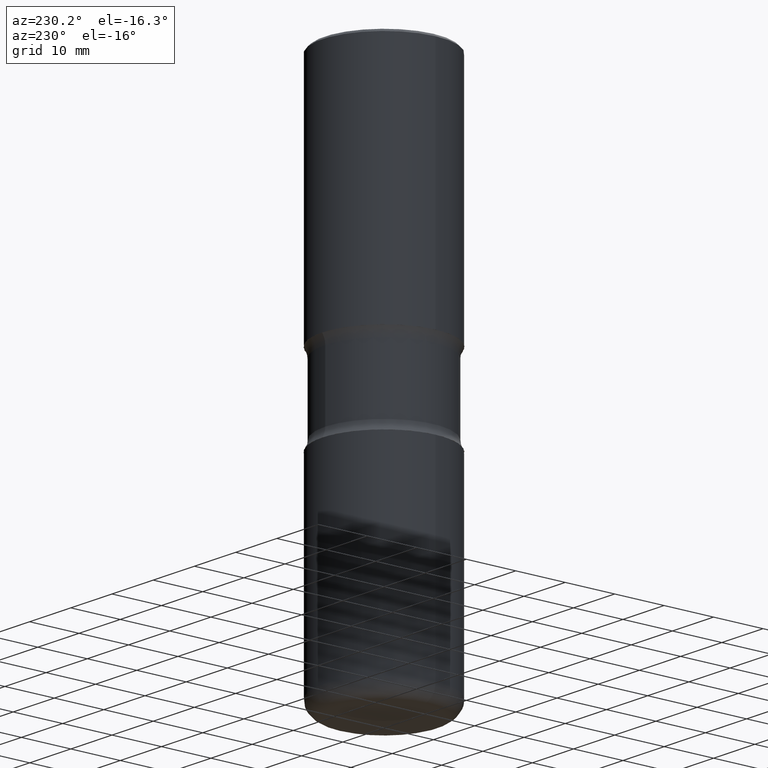
[diagram: clean part render]
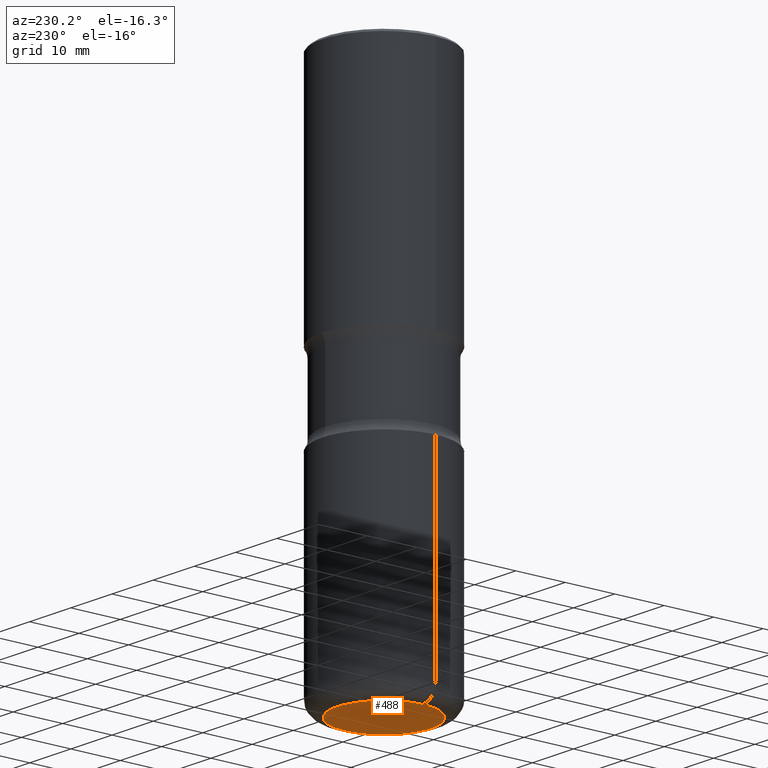
[diagram: same view with one face highlighted and labeled with its STEP entity id]
A machine part, auxiliary view. The second image highlights one B-rep face of the part: STEP entity #488.
In plain terms, the highlighted planar face has unit normal (0, -0, -1).
Its self-contained STEP definition (entity closure, byte-faithful):
#25 = DIRECTION ( 'NONE',  ( -2.445468806185136597E-29, 3.491481338843145583E-15, 1.000000000000000000 ) ) ;
#42 = DIRECTION ( 'NONE',  ( 2.438088387897960049E-29, -3.491481338843145188E-15, -1.000000000000000000 ) ) ;
#109 = CARTESIAN_POINT ( 'NONE',  ( 1.039813336389919950E-28, -1.484577865276105326E-14, -4.251999999999999780 ) ) ;
#114 = EDGE_LOOP ( 'NONE', ( #121, #548 ) ) ;
#121 = ORIENTED_EDGE ( 'NONE', *, *, #255, .F. ) ;
#132 = CIRCLE ( 'NONE', #179, 0.3740500000000004377 ) ;
#150 = DIRECTION ( 'NONE',  ( 1.000000000000000000, -6.982962677686265133E-15, 0.000000000000000000 ) ) ;
#155 = VERTEX_POINT ( 'NONE', #314 ) ;
#168 = CARTESIAN_POINT ( 'NONE',  ( 0.3740500000000004377, -1.745775584234960551E-14, -4.251999999999999780 ) ) ;
#179 = AXIS2_PLACEMENT_3D ( 'NONE', #247, #192, #150 ) ;
#192 = DIRECTION ( 'NONE',  ( -2.445468806185136597E-29, 3.491481338843145583E-15, 1.000000000000000000 ) ) ;
#247 = CARTESIAN_POINT ( 'NONE',  ( 1.039813336389919950E-28, -1.484577865276105326E-14, -4.251999999999999780 ) ) ;
#254 = DIRECTION ( 'NONE',  ( -1.000000000000000000, 6.982962677686265922E-15, -4.876176775795935793E-29 ) ) ;
#255 = EDGE_CURVE ( 'NONE', #476, #155, #530, .T. ) ;
#299 = EDGE_CURVE ( 'NONE', #155, #476, #132, .T. ) ;
#302 = AXIS2_PLACEMENT_3D ( 'NONE', #109, #25, #371 ) ;
#310 = AXIS2_PLACEMENT_3D ( 'NONE', #473, #42, #254 ) ;
#314 = CARTESIAN_POINT ( 'NONE',  ( -0.3740500000000004377, -1.156224609112537121E-14, -4.251999999999999780 ) ) ;
#334 = PLANE ( 'NONE',  #310 ) ;
#371 = DIRECTION ( 'NONE',  ( 1.000000000000000000, -6.982962677686265133E-15, 0.000000000000000000 ) ) ;
#473 = CARTESIAN_POINT ( 'NONE',  ( 1.473513757477249102E-28, -8.634941775840625490E-15, -4.252000000000000668 ) ) ;
#476 = VERTEX_POINT ( 'NONE', #168 ) ;
#488 = ADVANCED_FACE ( 'NONE', ( #518 ), #334, .T. ) ;
#518 = FACE_OUTER_BOUND ( 'NONE', #114, .T. ) ;
#530 = CIRCLE ( 'NONE', #302, 0.3740500000000004377 ) ;
#548 = ORIENTED_EDGE ( 'NONE', *, *, #299, .F. ) ;